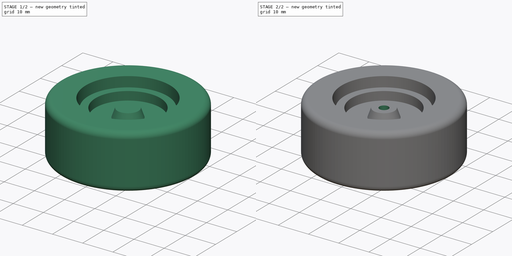
[diagram: build sequence overview — one tinted view per stage of 2, left to right]
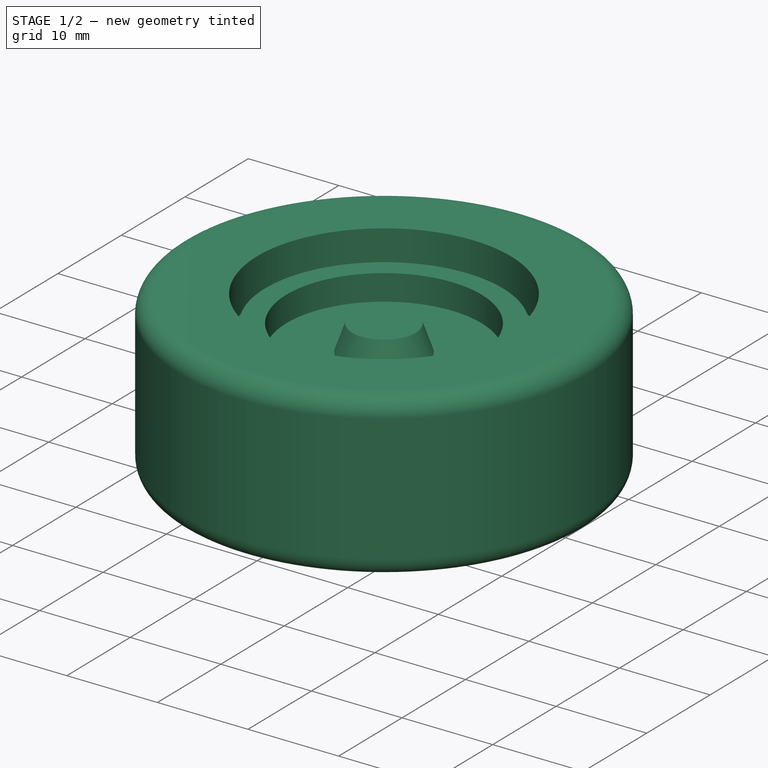
[diagram: stage 1 of 2 — iso view after this stage's code; geometry added in this stage tinted green]
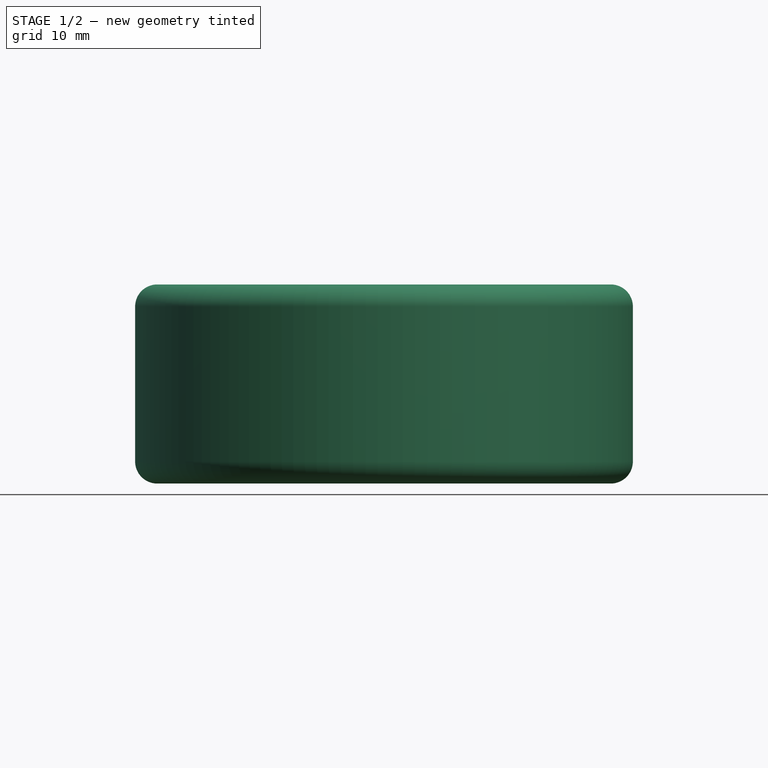
[diagram: stage 1 of 2 — front view after this stage's code; geometry added in this stage tinted green]
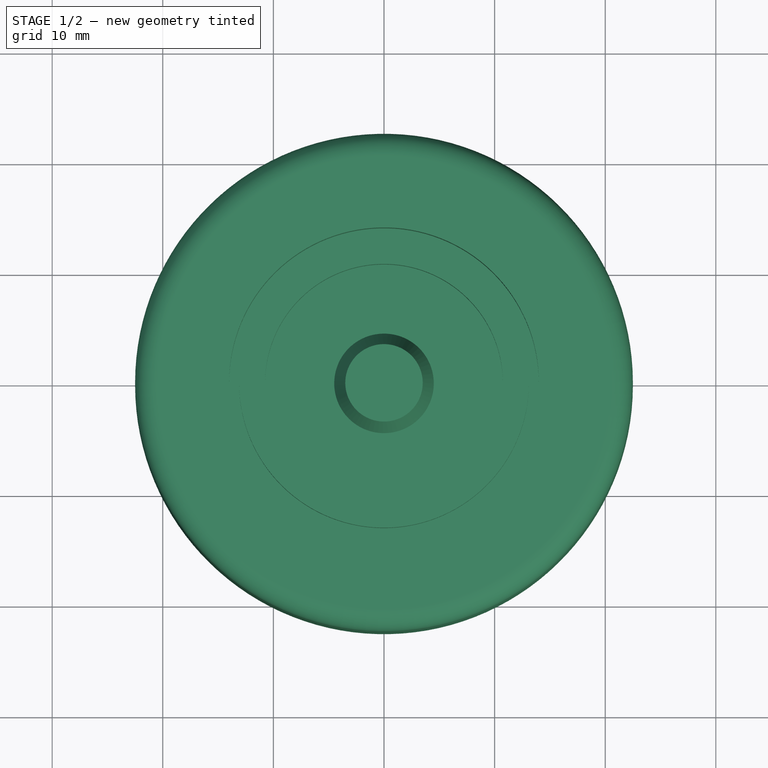
[diagram: stage 1 of 2 — top view after this stage's code; geometry added in this stage tinted green]
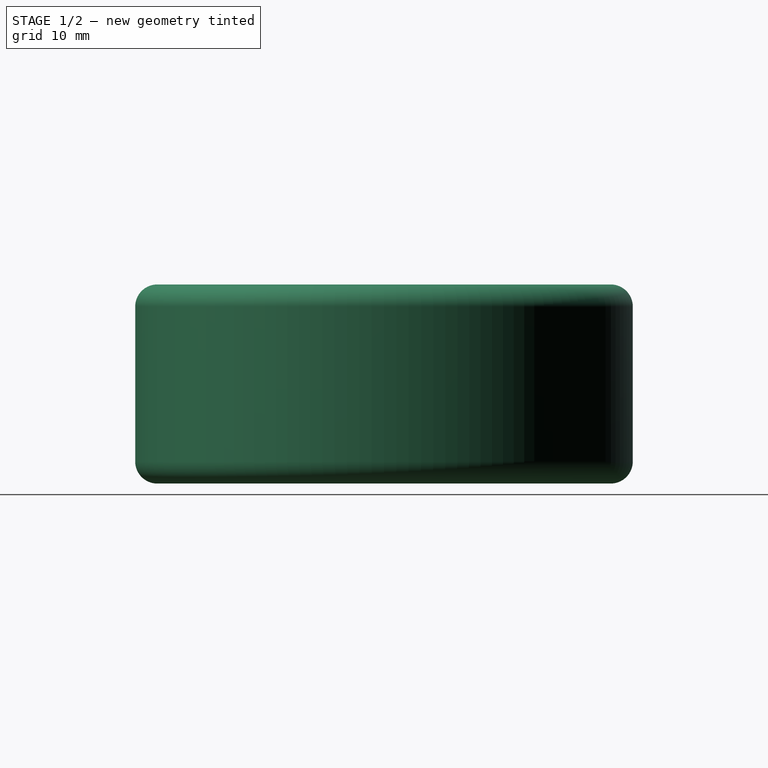
[diagram: stage 1 of 2 — right view after this stage's code; geometry added in this stage tinted green]
FCSTD DOCUMENT  (FreeCAD 0.19R24276 (Git))
Label: AB2_Wheel
License: All rights reserved
LicenseURL: http://en.wikipedia.org/wiki/All_rights_reserved
objects: Sketcher::SketchObject×3, PartDesign::Revolution×2, PartDesign::Body×2, PartDesign::Pocket×1, App::Part×1
note: 11 computed .brp shape members not serialized (recipe doc carries the construction recipe); baked Part::Feature solids carry a one-line shape summary decoded from their .brp

FEATURE [Sketcher::SketchObject] Sketch
  FullyConstrained = false
  MapMode = 5
  Placement = pos=(0,0,0) rot=(1,0,0;1.5708rad)
  Support = -> [XZ_Plane001]
  sketch-geometry (19):
    g0: LineSegment StartX=0 StartY=-3.85 StartZ=0 EndX=0 EndY=3.85 EndZ=0
    g1: LineSegment StartX=0 StartY=3.85 StartZ=0 EndX=3.5 EndY=3.85 EndZ=0
    g2: LineSegment StartX=3.5 StartY=3.85 StartZ=0 EndX=4.5 EndY=1 EndZ=0
    g3: LineSegment StartX=4.5 StartY=1 StartZ=0 EndX=10.75 EndY=1 EndZ=0
    g4: LineSegment StartX=10.75 StartY=1 StartZ=0 EndX=10.75 EndY=3.85 EndZ=0
    g5: LineSegment StartX=10.75 StartY=3.85 StartZ=0 EndX=13.1 EndY=3.85 EndZ=0
    g6: LineSegment StartX=13.1 StartY=3.85 StartZ=0 EndX=13.1 EndY=1.65 EndZ=0
    g7: LineSegment StartX=17.5 StartY=0.75 StartZ=0 EndX=17.5 EndY=-5.25 EndZ=0
    g8: LineSegment StartX=13.1 StartY=-6.15 StartZ=0 EndX=13.1 EndY=-9.35 EndZ=0
    g9: LineSegment StartX=13.1 StartY=-9.35 StartZ=0 EndX=10.75 EndY=-9.35 EndZ=0
    g10: LineSegment StartX=10.75 StartY=-9.35 StartZ=0 EndX=10.75 EndY=-1 EndZ=0
    g11: LineSegment StartX=10.75 StartY=-1 StartZ=0 EndX=4.5 EndY=-1 EndZ=0
    g12: LineSegment StartX=4.5 StartY=-1 StartZ=0 EndX=3.5 EndY=-3.85 EndZ=0
    g13: LineSegment StartX=3.5 StartY=-3.85 StartZ=0 EndX=0 EndY=-3.85 EndZ=0
    g14: LineSegment StartX=0 StartY=0 StartZ=0 EndX=124.7 EndY=0 EndZ=0
    g15: LineSegment StartX=13.1 StartY=1.65 StartZ=0 EndX=14.9 EndY=1.65 EndZ=0
    g16: LineSegment StartX=14.9 StartY=1.65 StartZ=0 EndX=17.5 EndY=0.75 EndZ=0
    g17: LineSegment StartX=13.1 StartY=-6.15 StartZ=0 EndX=14.9 EndY=-6.15 EndZ=0
    g18: LineSegment StartX=14.9 StartY=-6.15 StartZ=0 EndX=17.5 EndY=-5.25 EndZ=0
  constraints (54):
    c: PointOnObject(g0,g-2)
    c: Coincident(g1,g0)
    c: Horizontal(g1)
    c: Coincident(g2,g1)
    c: Coincident(g3,g2)
    c: Horizontal(g3)
    c: Coincident(g4,g3)
    c: Vertical(g4)
    c: Coincident(g5,g4)
    c: Horizontal(g5)
    c: Coincident(g6,g5)
    c: Vertical(g6)
    c: Vertical(g8)
    c: Coincident(g9,g8)
    c: Horizontal(g9)
    c: Coincident(g10,g9)
    c: Vertical(g10)
    c: Coincident(g11,g10)
    c: Horizontal(g11)
    c: Coincident(g12,g11)
    c: Coincident(g13,g12)
    c: Coincident(g13,g0)
    c: Symmetric(g0,g0,g-1)
    c: Horizontal(g13)
    c: Coincident(g14,g-1)
    c: PointOnObject(g14,g-1)
    c: Symmetric(g2,g11,g14)
    c: Equal(g1,g13)
    c: Equal(g11,g3)
    c: Distance(g1) = 3.5
    c: DistanceX(g0,g2) = 4.5
    c: Distance(g0) = 7.7
    c: DistanceX(g0,g3) = 10.75
    c: Equal(g5,g9)
    c: DistanceX(g0,g7) = 17.5
    c: Distance(g7) = 6
    c: DistanceY(g11,g2) = 2
    c: Vertical(g7)
    c: Coincident(g15,g6)
    c: Horizontal(g15)
    c: Coincident(g16,g15)
    c: Coincident(g16,g7)
    c: Coincident(g17,g8)
    c: Horizontal(g17)
    c: Coincident(g18,g17)
    c: Coincident(g18,g7)
    c: DistanceX(g0,g5) = 13.1
    c: DistanceX(g0,g15) = 14.9
    c: DistanceY(g-1,g4) = 3.85
    c: DistanceY(g8,g5) = 13.2
    c: DistanceY(g17,g15) = 7.8
    c: DistanceY(g17,g5) = 10
    c: DistanceX(g-1,g17) = 14.9
    c: Equal(g16,g18)
FEATURE [PartDesign::Revolution] Revolution
  Angle = 360
  Axis = (0,2e-16,1)
  Base = (0,0,0)
  Placement = pos=(0,0,0) rot=(1,0,0;1.5708rad)
  Profile = -> Sketch
  ReferenceAxis = -> Sketch [V_Axis]
  Reversed = true
FEATURE [PartDesign::Body] Body  label="Hub"
  Group = -> [Sketch,Revolution,Sketch001,Pocket]
  Origin = -> Origin001
  Tip = -> Pocket
FEATURE [Sketcher::SketchObject] Sketch002
  FullyConstrained = true
  MapMode = 5
  Placement = pos=(0,0,0) rot=(1,0,0;1.5708rad)
  Support = -> [XZ_Plane002]
  sketch-geometry (11):
    g0: LineSegment StartX=14 StartY=6.8 StartZ=0 EndX=20.5 EndY=6.8 EndZ=0
    g1: LineSegment StartX=20.5 StartY=-11.2 StartZ=0 EndX=14 EndY=-11.2 EndZ=0
    g2: LineSegment StartX=14 StartY=-11.2 StartZ=0 EndX=14 EndY=-6.7 EndZ=0
    g3: LineSegment StartX=14 StartY=-6.7 StartZ=0 EndX=17.5 EndY=-6.7 EndZ=0
    g4: LineSegment StartX=17.5 StartY=-6.7 StartZ=0 EndX=17.5 EndY=2.3 EndZ=0
    g5: LineSegment StartX=17.5 StartY=2.3 StartZ=0 EndX=14 EndY=2.3 EndZ=0
    g6: LineSegment StartX=14 StartY=2.3 StartZ=0 EndX=14 EndY=6.8 EndZ=0
    g7: LineSegment StartX=0 StartY=-2.2 StartZ=0 EndX=22.5 EndY=-2.2 EndZ=0
    g8: ArcOfCircle CenterX=20.5 CenterY=4.8 CenterZ=0 NormalX=0 NormalY=0 NormalZ=1 AngleXU=0 Radius=2 StartAngle=6.28319 EndAngle=7.85398
    g9: ArcOfCircle CenterX=20.5 CenterY=-9.2 CenterZ=0 NormalX=0 NormalY=0 NormalZ=1 AngleXU=0 Radius=2 StartAngle=4.71239 EndAngle=6.28319
    g10: LineSegment StartX=22.5 StartY=4.8 StartZ=0 EndX=22.5 EndY=-9.2 EndZ=0
  constraints (35):
    c: Horizontal(g0)
    c: Coincident(g2,g1)
    c: Vertical(g2)
    c: Coincident(g3,g2)
    c: Horizontal(g3)
    c: Coincident(g4,g3)
    c: Vertical(g4)
    c: Coincident(g5,g4)
    c: Horizontal(g5)
    c: Coincident(g6,g5)
    c: Coincident(g6,g0)
    c: Vertical(g6)
    c: Horizontal(g1)
    c: Equal(g6,g2)
    c: Equal(g0,g1)
    c: PointOnObject(g7,g-2)
    c: Horizontal(g7)
    c: DistanceY(g7,g-1) = 2.2
    c: Distance(g7) = 22.5
    c: Distance(g4) = 9
    c: Coincident(g8,g0)
    c: Tangent(g8,g0)
    c: Coincident(g9,g1)
    c: Coincident(g10,g8)
    c: Coincident(g10,g9)
    c: Vertical(g10)
    c: Tangent(g1,g9)
    c: Symmetric(g8,g9,g7)
    c: Tangent(g8,g10)
    c: Tangent(g10,g9)
    c: Radius(g8) = 2
    c: Radius(g9) = 2
    c: DistanceY(g1,g0) = 18
    c: DistanceX(g0,g7) = 8.5
    c: DistanceX(g3,g7) = 5
FEATURE [PartDesign::Revolution] Revolution001
  Angle = 360
  Axis = (0,2e-16,1)
  Base = (0,0,0)
  Placement = pos=(0,0,0) rot=(1,0,0;1.5708rad)
  Profile = -> Sketch002
  ReferenceAxis = -> Sketch002 [V_Axis]
  Reversed = true
FEATURE [PartDesign::Body] Body001  label="Tire"
  Group = -> [Sketch002,Revolution001]
  Origin = -> Origin002
  Tip = -> Revolution001
FEATURE [App::Part] Part  label="AB2_Wheel"
  Group = -> [Body,Body001]
  Origin = -> Origin
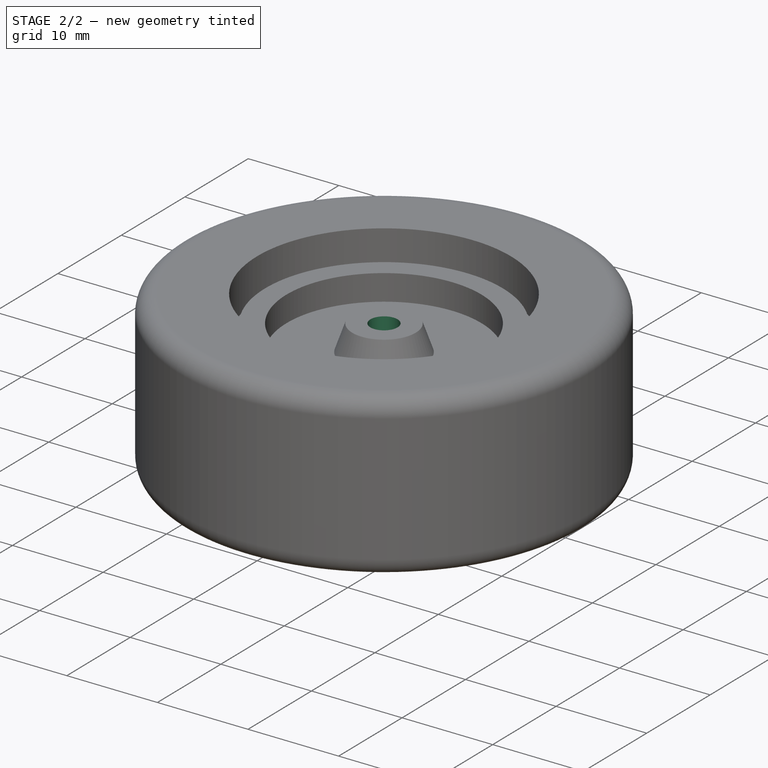
[diagram: stage 2 of 2 — iso view after this stage's code; geometry added in this stage tinted green]
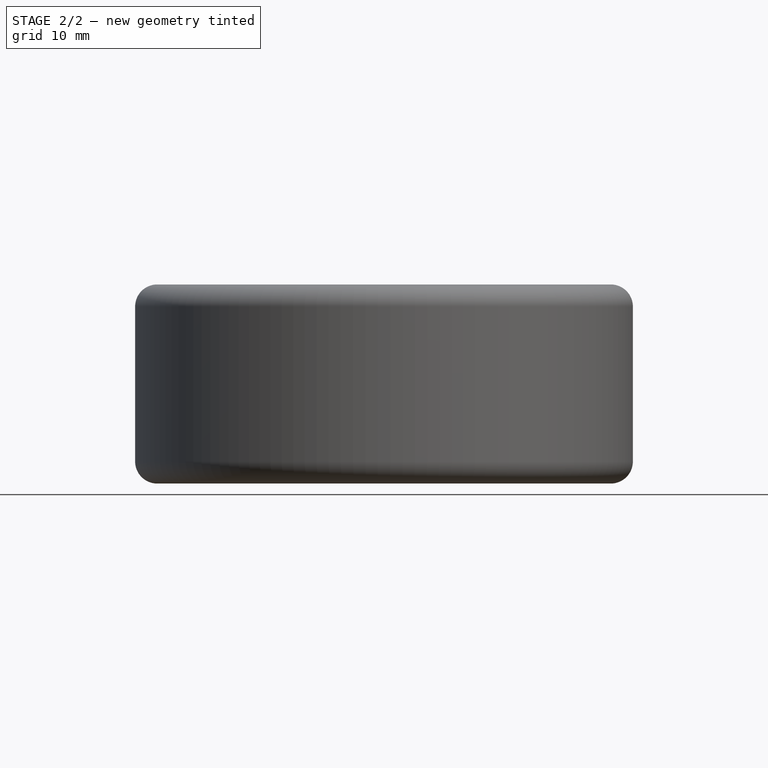
[diagram: stage 2 of 2 — front view after this stage's code; geometry added in this stage tinted green]
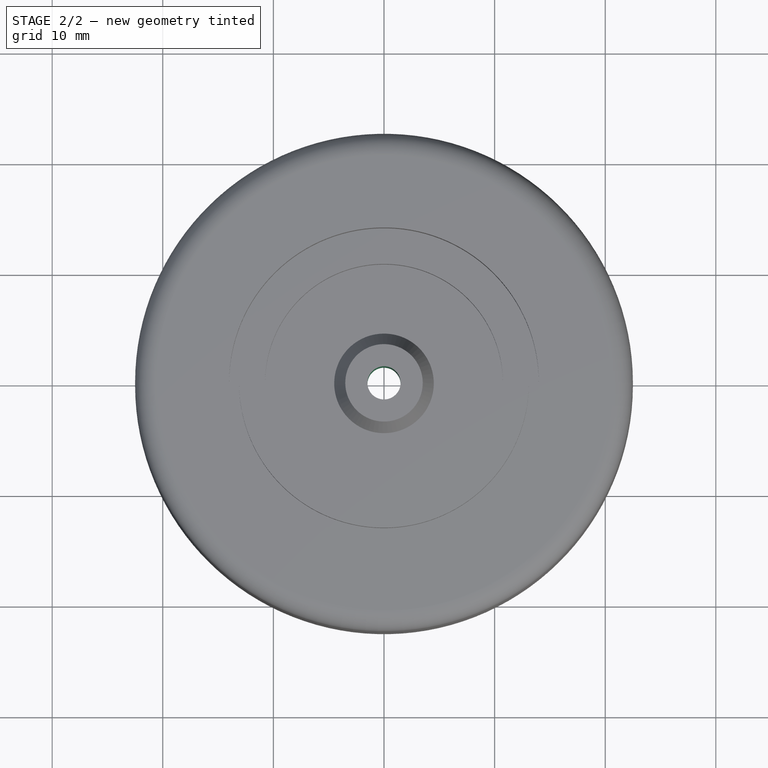
[diagram: stage 2 of 2 — top view after this stage's code; geometry added in this stage tinted green]
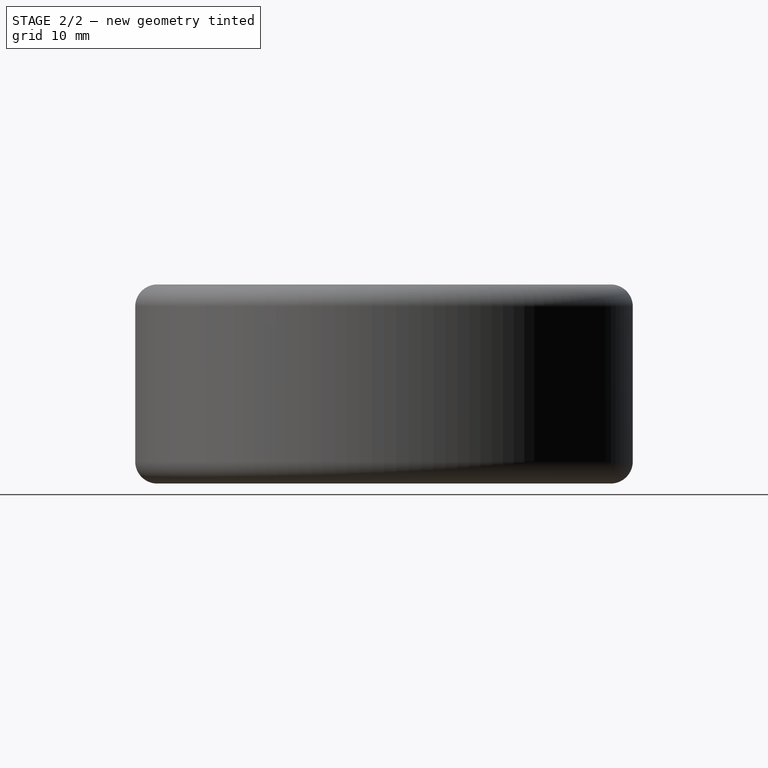
[diagram: stage 2 of 2 — right view after this stage's code; geometry added in this stage tinted green]
FEATURE [Sketcher::SketchObject] Sketch001
  FullyConstrained = true
  MapMode = 5
  Support = -> [XY_Plane001]
  sketch-geometry (1):
    g0: Circle CenterX=0 CenterY=0 CenterZ=0 NormalX=0 NormalY=0 NormalZ=1 AngleXU=0 Radius=1.5
  constraints (2):
    c: Coincident(g0,g-1)
    c: Diameter(g0) = 3
FEATURE [PartDesign::Pocket] Pocket
  BaseFeature = -> Revolution
  Length = 5
  Length2 = 100
  Midplane = true
  Placement = pos=(0,0,0) rot=(1,0,0;1.5708rad)
  Profile = -> Sketch001
  Type = 1
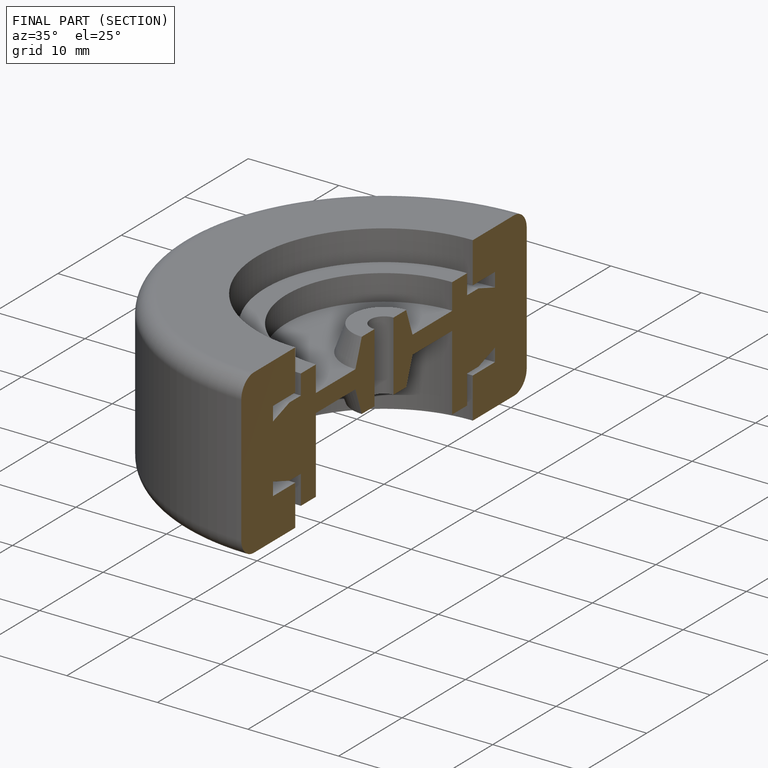
[diagram: finished part — half-section view (interior)]
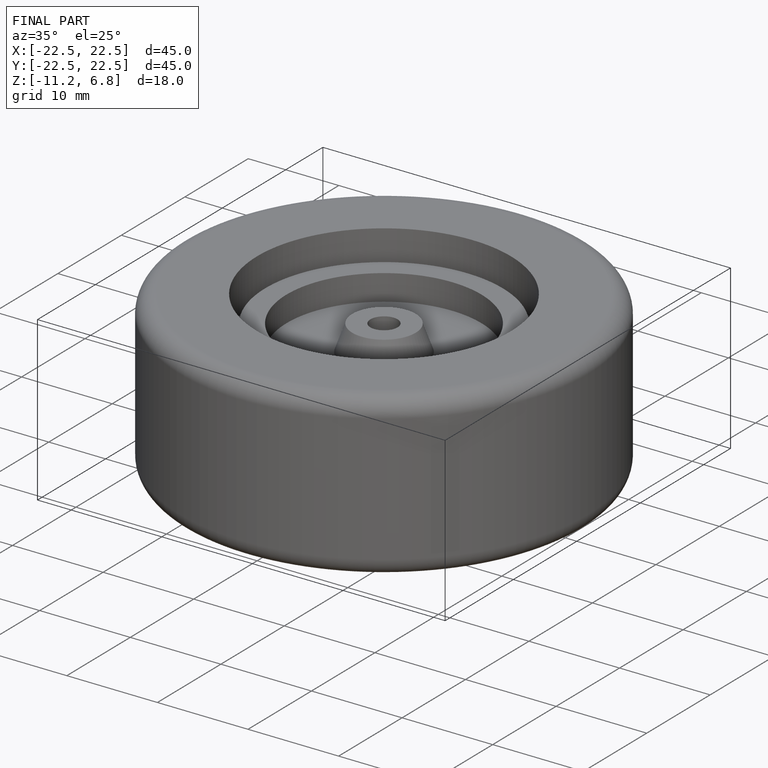
[diagram: finished part — iso view with bounding-box wireframe]
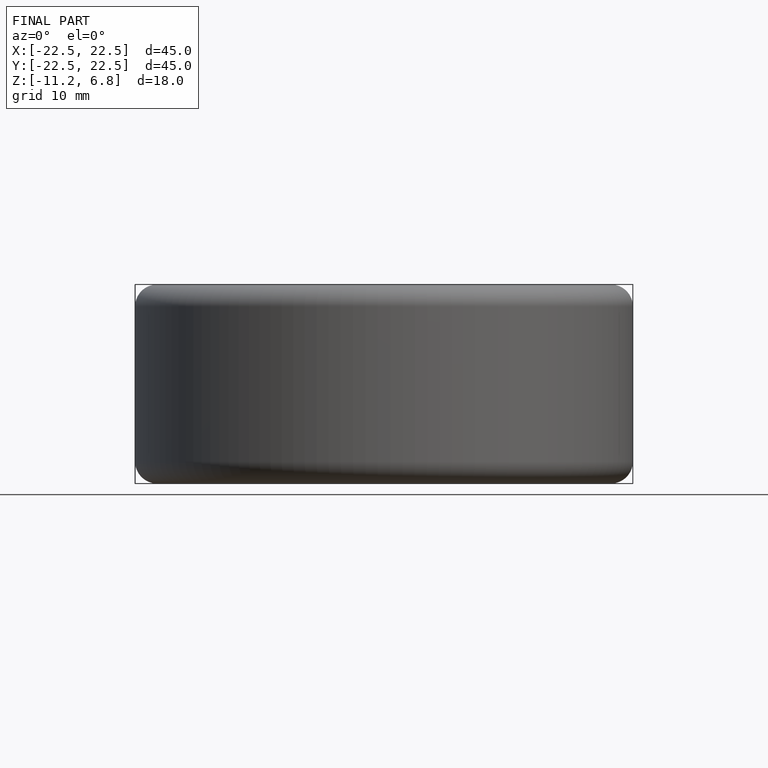
[diagram: finished part — front view with bounding-box wireframe]
